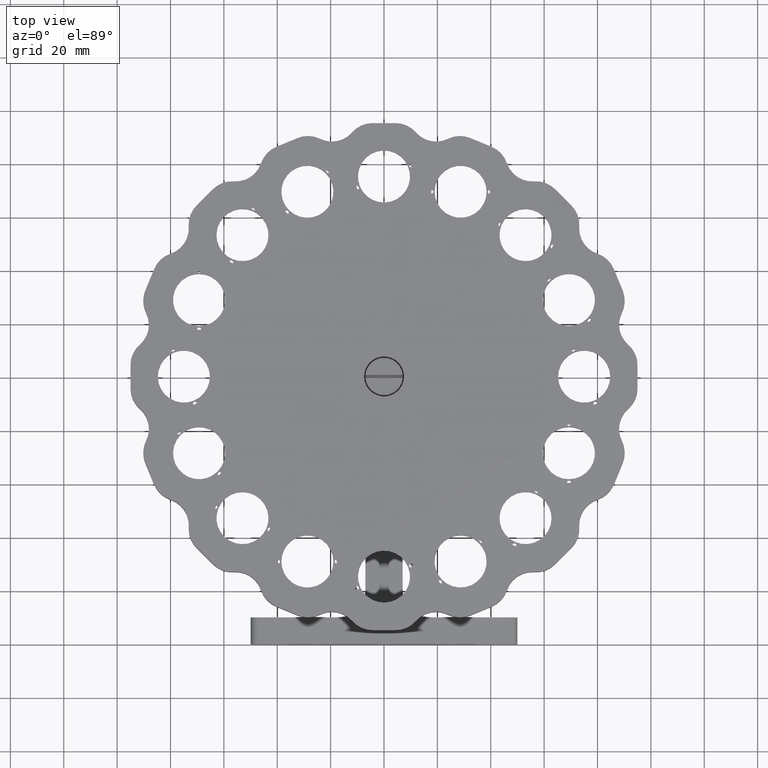
[diagram: clean part render]
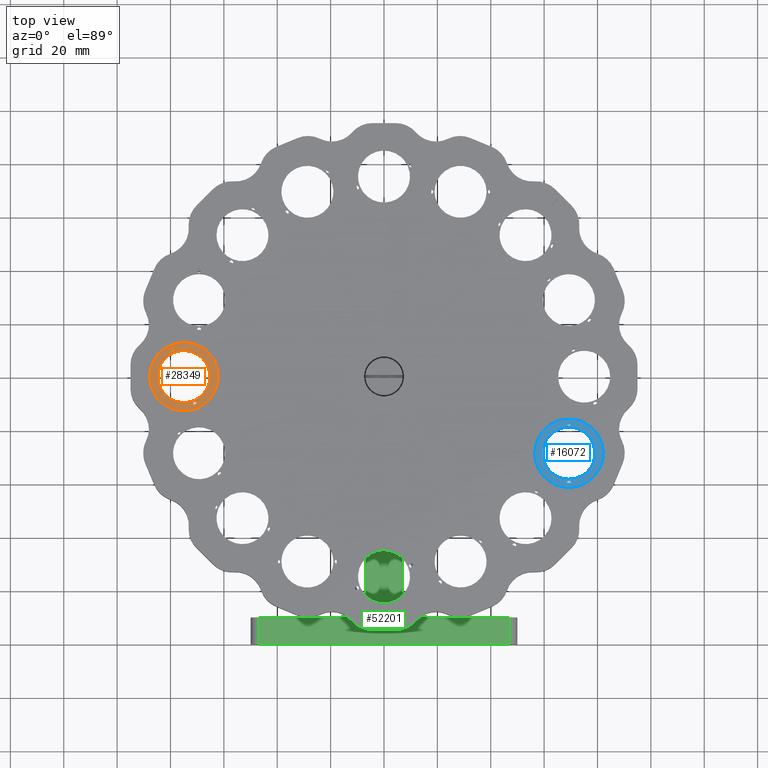
[diagram: same view with three faces highlighted in distinct colors, each labeled with its STEP entity id]
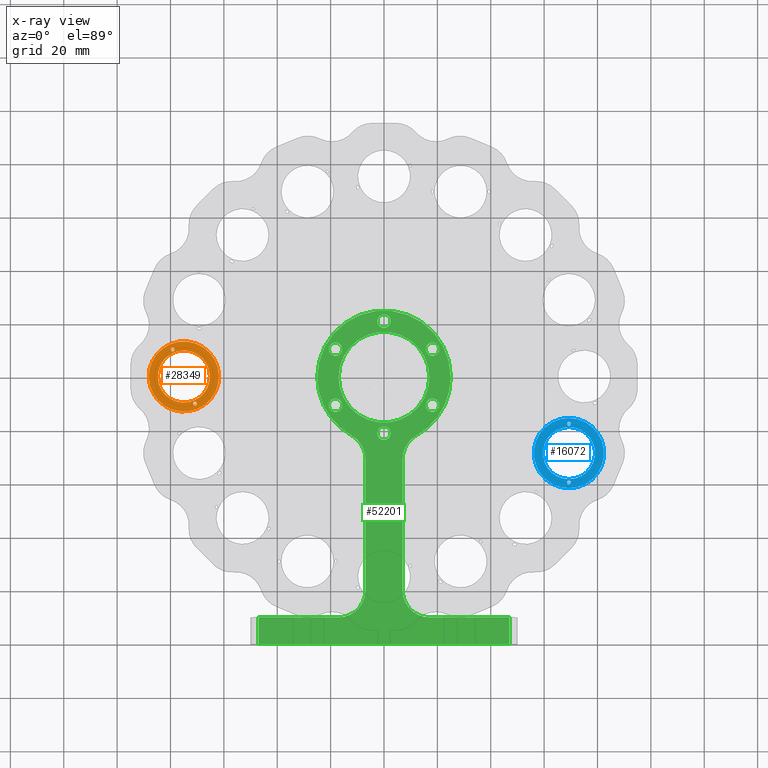
[diagram: x-ray of the same camera — body ghosted, the three highlighted faces saturated]
A machine part, top view with three faces highlighted in distinct colors.
The next image is the same camera in x-ray (body ghosted, the three faces saturated) — at least one of them is partly hidden behind the body in this view.
Their STEP definitions:

[orange] entity #28349 — the highlighted planar face has unit normal (-0, -0, 1).
#904 = AXIS2_PLACEMENT_3D ( 'NONE', #24577, #28650, #9528 ) ;
#1435 = DIRECTION ( 'NONE',  ( 0.3826834323651002700, -0.9238795325112823000, 0.0000000000000000000 ) ) ;
#1917 = CIRCLE ( 'NONE', #33898, 0.7500000000000023300 ) ;
#2052 = VERTEX_POINT ( 'NONE', #13637 ) ;
#2230 = DIRECTION ( 'NONE',  ( -1.196257624380579700E-018, -1.224547924171102900E-016, 1.000000000000000000 ) ) ;
#2279 = CARTESIAN_POINT ( 'NONE',  ( -78.73116346555774200, 9.007825441987806800, 14.00000000000000000 ) ) ;
#2485 = CARTESIAN_POINT ( 'NONE',  ( -70.79048224398208300, -10.16267485762144000, 14.00000000000000700 ) ) ;
#3361 = VERTEX_POINT ( 'NONE', #33454 ) ;
#3973 = CARTESIAN_POINT ( 'NONE',  ( -70.50346966970826700, -10.85558450700490100, 14.00000000000000700 ) ) ;
#4167 = VERTEX_POINT ( 'NONE', #50500 ) ;
#5858 = DIRECTION ( 'NONE',  ( -1.196257624381494200E-018, -1.224547924171081000E-016, 1.000000000000000000 ) ) ;
#6522 = CARTESIAN_POINT ( 'NONE',  ( -80.03228713559906300, 12.14901585252617400, 14.00000000000000000 ) ) ;
#6774 = FACE_BOUND ( 'NONE', #51026, .T. ) ;
#7079 = VERTEX_POINT ( 'NONE', #41486 ) ;
#8525 = CIRCLE ( 'NONE', #46959, 13.15000000000003200 ) ;
#9395 = DIRECTION ( 'NONE',  ( -1.196257624380579700E-018, -1.224547924171102900E-016, 1.000000000000000000 ) ) ;
#9528 = DIRECTION ( 'NONE',  ( -0.3826834323650976600, 0.9238795325112835200, 1.779203565104413400E-016 ) ) ;
#10422 = EDGE_LOOP ( 'NONE', ( #41075, #41232 ) ) ;
#10771 = DIRECTION ( 'NONE',  ( 0.3826834323651002700, -0.9238795325112823000, 0.0000000000000000000 ) ) ;
#11204 = AXIS2_PLACEMENT_3D ( 'NONE', #38553, #42590, #33972 ) ;
#12965 = DIRECTION ( 'NONE',  ( -0.3826834323650976600, 0.9238795325112835200, 1.779203565104413400E-016 ) ) ;
#13637 = CARTESIAN_POINT ( 'NONE',  ( -78.92250518174044800, 9.469765208243417800, 14.00000000000000900 ) ) ;
#14351 = DIRECTION ( 'NONE',  ( -1.196257624380579700E-018, -1.224547924171102900E-016, 1.000000000000000000 ) ) ;
#14970 = EDGE_LOOP ( 'NONE', ( #51221, #44353 ) ) ;
#15335 = ORIENTED_EDGE ( 'NONE', *, *, #41545, .T. ) ;
#16846 = CARTESIAN_POINT ( 'NONE',  ( -79.20951775601427900, 10.16267485762687900, 14.00000000000000900 ) ) ;
#17402 = CARTESIAN_POINT ( 'NONE',  ( -74.99999999999803900, 2.793410372272969800E-012, 13.99999999999999800 ) ) ;
#18512 = CARTESIAN_POINT ( 'NONE',  ( -74.99999999999803900, 2.793410372272969800E-012, 13.99999999999999800 ) ) ;
#19398 = VERTEX_POINT ( 'NONE', #3973 ) ;
#20865 = DIRECTION ( 'NONE',  ( -0.3826834323651002700, 0.9238795325112823000, 0.0000000000000000000 ) ) ;
#21112 = EDGE_CURVE ( 'NONE', #7079, #39041, #52247, .T. ) ;
#24577 = CARTESIAN_POINT ( 'NONE',  ( -74.99999999999803900, 2.793410372272969800E-012, 13.99999999999999800 ) ) ;
#26076 = DIRECTION ( 'NONE',  ( -0.3826834323650972200, 0.9238795325112835200, 1.319181350552701800E-016 ) ) ;
#26280 = EDGE_CURVE ( 'NONE', #2052, #47051, #42927, .T. ) ;
#27358 = EDGE_CURVE ( 'NONE', #51619, #3361, #31488, .T. ) ;
#28349 = ADVANCED_FACE ( 'NONE', ( #6774, #34654, #40303, #44080 ), #37729, .T. ) ;
#28650 = DIRECTION ( 'NONE',  ( -1.196257624380579700E-018, -1.224547924171102900E-016, 1.000000000000000000 ) ) ;
#29067 = CIRCLE ( 'NONE', #11204, 0.7500000000000023300 ) ;
#30357 = AXIS2_PLACEMENT_3D ( 'NONE', #17402, #5858, #49730 ) ;
#30776 = ORIENTED_EDGE ( 'NONE', *, *, #45039, .F. ) ;
#31283 = AXIS2_PLACEMENT_3D ( 'NONE', #16846, #45049, #20865 ) ;
#31488 = CIRCLE ( 'NONE', #38777, 9.750000000000023100 ) ;
#32088 = AXIS2_PLACEMENT_3D ( 'NONE', #41315, #45194, #49641 ) ;
#33454 = CARTESIAN_POINT ( 'NONE',  ( -71.26883653443835000, -9.007825441982220100, 13.99999999999999600 ) ) ;
#33898 = AXIS2_PLACEMENT_3D ( 'NONE', #42258, #9395, #1435 ) ;
#33957 = CIRCLE ( 'NONE', #904, 9.750000000000023100 ) ;
#33972 = DIRECTION ( 'NONE',  ( -0.3826834323651002700, 0.9238795325112823000, 0.0000000000000000000 ) ) ;
#34530 = ORIENTED_EDGE ( 'NONE', *, *, #39066, .F. ) ;
#34654 = FACE_BOUND ( 'NONE', #10422, .T. ) ;
#37216 = CARTESIAN_POINT ( 'NONE',  ( -74.99999999999803900, 2.793410372272969800E-012, 13.99999999999999800 ) ) ;
#37729 = PLANE ( 'NONE',  #30357 ) ;
#38553 = CARTESIAN_POINT ( 'NONE',  ( -79.20951775601427900, 10.16267485762687900, 14.00000000000000900 ) ) ;
#38777 = AXIS2_PLACEMENT_3D ( 'NONE', #37216, #45293, #12965 ) ;
#39041 = VERTEX_POINT ( 'NONE', #6522 ) ;
#39066 = EDGE_CURVE ( 'NONE', #4167, #19398, #42606, .T. ) ;
#40303 = FACE_OUTER_BOUND ( 'NONE', #44329, .T. ) ;
#40464 = AXIS2_PLACEMENT_3D ( 'NONE', #2485, #14351, #10771 ) ;
#41075 = ORIENTED_EDGE ( 'NONE', *, *, #45955, .F. ) ;
#41163 = CARTESIAN_POINT ( 'NONE',  ( -79.49653033028809500, 10.85558450701034300, 14.00000000000000900 ) ) ;
#41232 = ORIENTED_EDGE ( 'NONE', *, *, #26280, .F. ) ;
#41315 = CARTESIAN_POINT ( 'NONE',  ( -74.99999999999803900, 2.793410372272969800E-012, 13.99999999999999800 ) ) ;
#41486 = CARTESIAN_POINT ( 'NONE',  ( -69.96771286439701500, -12.14901585252058800, 13.99999999999999600 ) ) ;
#41545 = EDGE_CURVE ( 'NONE', #39041, #7079, #8525, .T. ) ;
#42258 = CARTESIAN_POINT ( 'NONE',  ( -70.79048224398208300, -10.16267485762144000, 14.00000000000000700 ) ) ;
#42590 = DIRECTION ( 'NONE',  ( -1.196257624380579700E-018, -1.224547924171102900E-016, 1.000000000000000000 ) ) ;
#42606 = CIRCLE ( 'NONE', #40464, 0.7500000000000023300 ) ;
#42927 = CIRCLE ( 'NONE', #31283, 0.7500000000000023300 ) ;
#43405 = ORIENTED_EDGE ( 'NONE', *, *, #21112, .T. ) ;
#44080 = FACE_BOUND ( 'NONE', #14970, .T. ) ;
#44329 = EDGE_LOOP ( 'NONE', ( #43405, #15335 ) ) ;
#44353 = ORIENTED_EDGE ( 'NONE', *, *, #27358, .F. ) ;
#45039 = EDGE_CURVE ( 'NONE', #19398, #4167, #1917, .T. ) ;
#45049 = DIRECTION ( 'NONE',  ( -1.196257624380579700E-018, -1.224547924171102900E-016, 1.000000000000000000 ) ) ;
#45194 = DIRECTION ( 'NONE',  ( -1.196257624380579700E-018, -1.224547924171102900E-016, 1.000000000000000000 ) ) ;
#45293 = DIRECTION ( 'NONE',  ( -1.196257624380579700E-018, -1.224547924171102900E-016, 1.000000000000000000 ) ) ;
#45955 = EDGE_CURVE ( 'NONE', #47051, #2052, #29067, .T. ) ;
#46959 = AXIS2_PLACEMENT_3D ( 'NONE', #18512, #2230, #26076 ) ;
#47051 = VERTEX_POINT ( 'NONE', #41163 ) ;
#49641 = DIRECTION ( 'NONE',  ( -0.3826834323650972200, 0.9238795325112835200, 1.319181350552701800E-016 ) ) ;
#49730 = DIRECTION ( 'NONE',  ( -0.3826834323650971100, 0.9238795325112837400, 1.126756883983928900E-016 ) ) ;
#50500 = CARTESIAN_POINT ( 'NONE',  ( -71.07749481825591400, -9.469765208237976900, 14.00000000000000700 ) ) ;
#51026 = EDGE_LOOP ( 'NONE', ( #34530, #30776 ) ) ;
#51221 = ORIENTED_EDGE ( 'NONE', *, *, #51358, .F. ) ;
#51358 = EDGE_CURVE ( 'NONE', #3361, #51619, #33957, .T. ) ;
#51619 = VERTEX_POINT ( 'NONE', #2279 ) ;
#52247 = CIRCLE ( 'NONE', #32088, 13.15000000000003200 ) ;

[blue] entity #16072 — the highlighted planar face has unit normal (-0, -0, 1).
#352 = EDGE_CURVE ( 'NONE', #7878, #39154, #10460, .T. ) ;
#813 = ORIENTED_EDGE ( 'NONE', *, *, #35823, .F. ) ;
#2386 = EDGE_LOOP ( 'NONE', ( #3524, #19901 ) ) ;
#2414 = CARTESIAN_POINT ( 'NONE',  ( 69.29096493834356400, -39.70125742738414200, 14.00000000000000200 ) ) ;
#2985 = VERTEX_POINT ( 'NONE', #50297 ) ;
#3524 = ORIENTED_EDGE ( 'NONE', *, *, #20282, .F. ) ;
#4460 = AXIS2_PLACEMENT_3D ( 'NONE', #14204, #9595, #22312 ) ;
#7065 = ORIENTED_EDGE ( 'NONE', *, *, #44692, .F. ) ;
#7386 = CARTESIAN_POINT ( 'NONE',  ( 69.29096493834339300, -38.45125742738411400, 13.99999999999999300 ) ) ;
#7878 = VERTEX_POINT ( 'NONE', #38279 ) ;
#8167 = AXIS2_PLACEMENT_3D ( 'NONE', #34384, #37772, #17973 ) ;
#8252 = DIRECTION ( 'NONE',  ( -1.196257624394535000E-018, -1.224547924171125800E-016, 1.000000000000000000 ) ) ;
#8403 = AXIS2_PLACEMENT_3D ( 'NONE', #25795, #13273, #49676 ) ;
#9161 = AXIS2_PLACEMENT_3D ( 'NONE', #2414, #43034, #50877 ) ;
#9595 = DIRECTION ( 'NONE',  ( -1.196257624394535000E-018, -1.224547924171101400E-016, 1.000000000000000000 ) ) ;
#10460 = CIRCLE ( 'NONE', #24516, 9.750000000000023100 ) ;
#10753 = VERTEX_POINT ( 'NONE', #41279 ) ;
#10769 = CIRCLE ( 'NONE', #8403, 0.7500000000000006700 ) ;
#11975 = DIRECTION ( 'NONE',  ( 6.294751282927929000E-017, -1.000000000000000000, -1.224547924171125800E-016 ) ) ;
#12389 = VERTEX_POINT ( 'NONE', #49946 ) ;
#13273 = DIRECTION ( 'NONE',  ( -1.196257624394535000E-018, -1.224547924171101400E-016, 1.000000000000000000 ) ) ;
#13787 = AXIS2_PLACEMENT_3D ( 'NONE', #41803, #50684, #25891 ) ;
#14204 = CARTESIAN_POINT ( 'NONE',  ( 69.29096493834339300, -28.70125742738411400, 13.99999999999999500 ) ) ;
#14549 = VERTEX_POINT ( 'NONE', #32104 ) ;
#15027 = CIRCLE ( 'NONE', #8167, 0.7500000000000006700 ) ;
#16072 = ADVANCED_FACE ( 'NONE', ( #39047, #44073, #47265, #51711 ), #24345, .T. ) ;
#17212 = DIRECTION ( 'NONE',  ( -1.196257624394535000E-018, -1.224547924171101400E-016, 1.000000000000000000 ) ) ;
#17528 = ORIENTED_EDGE ( 'NONE', *, *, #36199, .T. ) ;
#17973 = DIRECTION ( 'NONE',  ( 0.0000000000000000000, 1.000000000000000000, 0.0000000000000000000 ) ) ;
#19901 = ORIENTED_EDGE ( 'NONE', *, *, #31805, .F. ) ;
#19920 = CIRCLE ( 'NONE', #48905, 0.7500000000000006700 ) ;
#20282 = EDGE_CURVE ( 'NONE', #39956, #10753, #47195, .T. ) ;
#20688 = CIRCLE ( 'NONE', #13787, 13.15000000000003100 ) ;
#21305 = CARTESIAN_POINT ( 'NONE',  ( 69.29096493834339300, -28.70125742738411400, 13.99999999999999500 ) ) ;
#22312 = DIRECTION ( 'NONE',  ( 0.0000000000000000000, -1.000000000000000000, -1.319181350552702100E-016 ) ) ;
#22398 = ORIENTED_EDGE ( 'NONE', *, *, #352, .F. ) ;
#24270 = EDGE_LOOP ( 'NONE', ( #46495, #813 ) ) ;
#24345 = PLANE ( 'NONE',  #34118 ) ;
#24516 = AXIS2_PLACEMENT_3D ( 'NONE', #21305, #41778, #45836 ) ;
#25614 = EDGE_LOOP ( 'NONE', ( #22398, #7065 ) ) ;
#25795 = CARTESIAN_POINT ( 'NONE',  ( 69.29096493834356400, -39.70125742738414200, 14.00000000000000200 ) ) ;
#25891 = DIRECTION ( 'NONE',  ( 0.0000000000000000000, -1.000000000000000000, -1.319181350552702100E-016 ) ) ;
#26047 = CARTESIAN_POINT ( 'NONE',  ( 69.29096493834339300, -28.70125742738411400, 13.99999999999999500 ) ) ;
#29250 = CARTESIAN_POINT ( 'NONE',  ( 69.29096493834354900, -16.95125742738405700, 14.00000000000000700 ) ) ;
#30453 = CIRCLE ( 'NONE', #50510, 9.750000000000023100 ) ;
#31805 = EDGE_CURVE ( 'NONE', #10753, #39956, #10769, .T. ) ;
#32104 = CARTESIAN_POINT ( 'NONE',  ( 69.29096493834339300, -15.55125742738411400, 13.99999999999999600 ) ) ;
#34118 = AXIS2_PLACEMENT_3D ( 'NONE', #48735, #8252, #11975 ) ;
#34384 = CARTESIAN_POINT ( 'NONE',  ( 69.29096493834354900, -17.70125742738405700, 14.00000000000000700 ) ) ;
#35823 = EDGE_CURVE ( 'NONE', #43932, #12389, #15027, .T. ) ;
#35854 = CIRCLE ( 'NONE', #4460, 13.15000000000003100 ) ;
#36199 = EDGE_CURVE ( 'NONE', #14549, #2985, #35854, .T. ) ;
#37360 = CARTESIAN_POINT ( 'NONE',  ( 69.29096493834354900, -17.70125742738405700, 14.00000000000000700 ) ) ;
#37772 = DIRECTION ( 'NONE',  ( -1.196257624394535000E-018, -1.224547924171101400E-016, 1.000000000000000000 ) ) ;
#38158 = EDGE_CURVE ( 'NONE', #12389, #43932, #19920, .T. ) ;
#38279 = CARTESIAN_POINT ( 'NONE',  ( 69.29096493834339300, -18.95125742738411400, 13.99999999999999600 ) ) ;
#39047 = FACE_BOUND ( 'NONE', #24270, .T. ) ;
#39154 = VERTEX_POINT ( 'NONE', #7386 ) ;
#39506 = EDGE_LOOP ( 'NONE', ( #17528, #48794 ) ) ;
#39956 = VERTEX_POINT ( 'NONE', #48830 ) ;
#41279 = CARTESIAN_POINT ( 'NONE',  ( 69.29096493834356400, -38.95125742738414200, 14.00000000000000200 ) ) ;
#41778 = DIRECTION ( 'NONE',  ( -1.196257624394535000E-018, -1.224547924171101400E-016, 1.000000000000000000 ) ) ;
#41803 = CARTESIAN_POINT ( 'NONE',  ( 69.29096493834339300, -28.70125742738411400, 13.99999999999999500 ) ) ;
#43034 = DIRECTION ( 'NONE',  ( -1.196257624394535000E-018, -1.224547924171101400E-016, 1.000000000000000000 ) ) ;
#43932 = VERTEX_POINT ( 'NONE', #29250 ) ;
#44073 = FACE_BOUND ( 'NONE', #2386, .T. ) ;
#44692 = EDGE_CURVE ( 'NONE', #39154, #7878, #30453, .T. ) ;
#45435 = DIRECTION ( 'NONE',  ( 0.0000000000000000000, 1.000000000000000000, 0.0000000000000000000 ) ) ;
#45836 = DIRECTION ( 'NONE',  ( 0.0000000000000000000, -1.000000000000000000, -1.779203565104413400E-016 ) ) ;
#46203 = DIRECTION ( 'NONE',  ( -1.196257624394535000E-018, -1.224547924171101400E-016, 1.000000000000000000 ) ) ;
#46495 = ORIENTED_EDGE ( 'NONE', *, *, #38158, .F. ) ;
#47195 = CIRCLE ( 'NONE', #9161, 0.7500000000000006700 ) ;
#47265 = FACE_OUTER_BOUND ( 'NONE', #39506, .T. ) ;
#48735 = CARTESIAN_POINT ( 'NONE',  ( 69.29096493834339300, -28.70125742738411400, 13.99999999999999500 ) ) ;
#48794 = ORIENTED_EDGE ( 'NONE', *, *, #52019, .T. ) ;
#48830 = CARTESIAN_POINT ( 'NONE',  ( 69.29096493834356400, -40.45125742738414900, 14.00000000000000200 ) ) ;
#48905 = AXIS2_PLACEMENT_3D ( 'NONE', #37360, #17212, #45435 ) ;
#49676 = DIRECTION ( 'NONE',  ( 0.0000000000000000000, -1.000000000000000000, 0.0000000000000000000 ) ) ;
#49946 = CARTESIAN_POINT ( 'NONE',  ( 69.29096493834354900, -18.45125742738405700, 14.00000000000000700 ) ) ;
#50297 = CARTESIAN_POINT ( 'NONE',  ( 69.29096493834339300, -41.85125742738412000, 13.99999999999999300 ) ) ;
#50510 = AXIS2_PLACEMENT_3D ( 'NONE', #26047, #46203, #50675 ) ;
#50675 = DIRECTION ( 'NONE',  ( 0.0000000000000000000, -1.000000000000000000, -1.779203565104413400E-016 ) ) ;
#50684 = DIRECTION ( 'NONE',  ( -1.196257624394535000E-018, -1.224547924171101400E-016, 1.000000000000000000 ) ) ;
#50877 = DIRECTION ( 'NONE',  ( 0.0000000000000000000, -1.000000000000000000, 0.0000000000000000000 ) ) ;
#51711 = FACE_BOUND ( 'NONE', #25614, .T. ) ;
#52019 = EDGE_CURVE ( 'NONE', #2985, #14549, #20688, .T. ) ;

[green] entity #52201 — the highlighted planar face has unit normal (-0, 0, 1).
#279 = ORIENTED_EDGE ( 'NONE', *, *, #33143, .F. ) ;
#332 = VERTEX_POINT ( 'NONE', #41095 ) ;
#462 = AXIS2_PLACEMENT_3D ( 'NONE', #43621, #7388, #35691 ) ;
#525 = ORIENTED_EDGE ( 'NONE', *, *, #29012, .F. ) ;
#828 = DIRECTION ( 'NONE',  ( 1.000000000000000000, 0.0000000000000000000, 0.0000000000000000000 ) ) ;
#849 = CARTESIAN_POINT ( 'NONE',  ( -3.784851220313032100E-014, -89.99999999999995700, 0.0000000000000000000 ) ) ;
#940 = CARTESIAN_POINT ( 'NONE',  ( 0.0000000000000000000, -21.00000000000000000, 1.249098480898822200E-015 ) ) ;
#946 = VECTOR ( 'NONE', #23555, 1000.000000000000000 ) ;
#1107 = ORIENTED_EDGE ( 'NONE', *, *, #36077, .F. ) ;
#1358 = ORIENTED_EDGE ( 'NONE', *, *, #15023, .T. ) ;
#1461 = VERTEX_POINT ( 'NONE', #3265 ) ;
#1500 = EDGE_CURVE ( 'NONE', #24903, #28534, #25522, .T. ) ;
#1983 = VERTEX_POINT ( 'NONE', #13110 ) ;
#2000 = CIRCLE ( 'NONE', #28470, 2.499999999999988500 ) ;
#2239 = DIRECTION ( 'NONE',  ( 1.000000000000000000, 0.0000000000000000000, 0.0000000000000000000 ) ) ;
#2530 = CARTESIAN_POINT ( 'NONE',  ( 2.499999999999988500, -21.00000000000000000, 1.249098480898822200E-015 ) ) ;
#2932 = ORIENTED_EDGE ( 'NONE', *, *, #41096, .T. ) ;
#3265 = CARTESIAN_POINT ( 'NONE',  ( 15.68653347947310200, 10.50000000000021300, 1.249098480898822200E-015 ) ) ;
#3737 = CARTESIAN_POINT ( 'NONE',  ( 3.784851220313032100E-014, -89.99999999999995700, 0.0000000000000000000 ) ) ;
#3828 = AXIS2_PLACEMENT_3D ( 'NONE', #17962, #14059, #46028 ) ;
#4441 = VECTOR ( 'NONE', #32029, 1000.000000000000000 ) ;
#4839 = CARTESIAN_POINT ( 'NONE',  ( -18.18653347947323700, 10.49999999999995900, 1.249098480898822200E-015 ) ) ;
#5533 = ORIENTED_EDGE ( 'NONE', *, *, #32415, .F. ) ;
#5593 = CARTESIAN_POINT ( 'NONE',  ( -2.499999999999988500, -21.00000000000000000, 1.249098480898822200E-015 ) ) ;
#6161 = AXIS2_PLACEMENT_3D ( 'NONE', #29486, #21526, #50350 ) ;
#6219 = VECTOR ( 'NONE', #41311, 1000.000000000000000 ) ;
#6976 = VERTEX_POINT ( 'NONE', #30512 ) ;
#7122 = CARTESIAN_POINT ( 'NONE',  ( 0.0000000000000000000, 0.0000000000000000000, 0.0000000000000000000 ) ) ;
#7352 = FACE_BOUND ( 'NONE', #37035, .T. ) ;
#7388 = DIRECTION ( 'NONE',  ( -0.0000000000000000000, -0.0000000000000000000, 1.000000000000000000 ) ) ;
#7465 = CARTESIAN_POINT ( 'NONE',  ( 7.000000000000016000, -2.457817493492188900E-016, 0.0000000000000000000 ) ) ;
#8077 = CIRCLE ( 'NONE', #26665, 2.499999999999988500 ) ;
#8110 = ORIENTED_EDGE ( 'NONE', *, *, #46349, .T. ) ;
#8144 = CARTESIAN_POINT ( 'NONE',  ( 0.0000000000000000000, 0.0000000000000000000, 0.0000000000000000000 ) ) ;
#8575 = CARTESIAN_POINT ( 'NONE',  ( -46.99999999999998600, -99.99999999999997200, 0.0000000000000000000 ) ) ;
#8669 = CIRCLE ( 'NONE', #22424, 2.499999999999988500 ) ;
#8804 = AXIS2_PLACEMENT_3D ( 'NONE', #47355, #48605, #31994 ) ;
#8986 = DIRECTION ( 'NONE',  ( -0.0000000000000000000, 0.0000000000000000000, 1.000000000000000000 ) ) ;
#9073 = DIRECTION ( 'NONE',  ( 1.000000000000000000, 0.0000000000000000000, 0.0000000000000000000 ) ) ;
#9224 = DIRECTION ( 'NONE',  ( 1.000000000000000000, 0.0000000000000000000, 0.0000000000000000000 ) ) ;
#9294 = FACE_OUTER_BOUND ( 'NONE', #50860, .T. ) ;
#9532 = ORIENTED_EDGE ( 'NONE', *, *, #26846, .T. ) ;
#10046 = VERTEX_POINT ( 'NONE', #38212 ) ;
#10520 = EDGE_CURVE ( 'NONE', #18095, #30203, #29977, .T. ) ;
#10779 = CARTESIAN_POINT ( 'NONE',  ( -6.999999999999985800, -79.99999999999998600, 0.0000000000000000000 ) ) ;
#11243 = CARTESIAN_POINT ( 'NONE',  ( 0.0000000000000000000, 21.00000000000000000, 1.249098480898822200E-015 ) ) ;
#11267 = CARTESIAN_POINT ( 'NONE',  ( 47.00000000000001400, -99.99999999999997200, 0.0000000000000000000 ) ) ;
#11970 = ORIENTED_EDGE ( 'NONE', *, *, #45257, .F. ) ;
#12116 = EDGE_CURVE ( 'NONE', #26156, #42864, #2000, .T. ) ;
#12310 = VERTEX_POINT ( 'NONE', #25707 ) ;
#12341 = CIRCLE ( 'NONE', #3828, 9.999999999999991100 ) ;
#12984 = VERTEX_POINT ( 'NONE', #10779 ) ;
#13110 = CARTESIAN_POINT ( 'NONE',  ( -15.68653347947317800, -10.50000000000008700, 1.249098480898822200E-015 ) ) ;
#13467 = ORIENTED_EDGE ( 'NONE', *, *, #33272, .F. ) ;
#13629 = EDGE_CURVE ( 'NONE', #47712, #36805, #18386, .T. ) ;
#13743 = FACE_BOUND ( 'NONE', #21229, .T. ) ;
#13794 = AXIS2_PLACEMENT_3D ( 'NONE', #28121, #39811, #32206 ) ;
#13805 = CIRCLE ( 'NONE', #29955, 10.00000000000000200 ) ;
#14059 = DIRECTION ( 'NONE',  ( -0.0000000000000000000, 0.0000000000000000000, 1.000000000000000000 ) ) ;
#14311 = DIRECTION ( 'NONE',  ( 0.0000000000000000000, 1.000000000000000000, -0.0000000000000000000 ) ) ;
#14814 = DIRECTION ( 'NONE',  ( 1.000000000000000000, 0.0000000000000000000, 0.0000000000000000000 ) ) ;
#14860 = ORIENTED_EDGE ( 'NONE', *, *, #18494, .T. ) ;
#14886 = VERTEX_POINT ( 'NONE', #21002 ) ;
#14924 = AXIS2_PLACEMENT_3D ( 'NONE', #33332, #45838, #49765 ) ;
#14947 = ORIENTED_EDGE ( 'NONE', *, *, #44404, .T. ) ;
#15005 = FACE_BOUND ( 'NONE', #43818, .T. ) ;
#15023 = EDGE_CURVE ( 'NONE', #50554, #35987, #41018, .T. ) ;
#15038 = EDGE_CURVE ( 'NONE', #6976, #47885, #23928, .T. ) ;
#15229 = CIRCLE ( 'NONE', #45411, 9.999999999999991100 ) ;
#15295 = PLANE ( 'NONE',  #16185 ) ;
#15545 = ORIENTED_EDGE ( 'NONE', *, *, #49918, .F. ) ;
#15578 = EDGE_CURVE ( 'NONE', #22059, #14886, #8077, .T. ) ;
#16185 = AXIS2_PLACEMENT_3D ( 'NONE', #7122, #24297, #28362 ) ;
#16260 = VERTEX_POINT ( 'NONE', #41126 ) ;
#16835 = VERTEX_POINT ( 'NONE', #11267 ) ;
#16901 = CARTESIAN_POINT ( 'NONE',  ( 18.18653347947330800, -10.49999999999983300, 1.249098480898822200E-015 ) ) ;
#17038 = CARTESIAN_POINT ( 'NONE',  ( 7.000000000000013300, -79.99999999999998600, 0.0000000000000000000 ) ) ;
#17789 = ORIENTED_EDGE ( 'NONE', *, *, #21446, .F. ) ;
#17962 = CARTESIAN_POINT ( 'NONE',  ( 17.00000000000001400, -79.99999999999998600, 0.0000000000000000000 ) ) ;
#17986 = EDGE_LOOP ( 'NONE', ( #45279, #5533 ) ) ;
#18095 = VERTEX_POINT ( 'NONE', #36714 ) ;
#18270 = DIRECTION ( 'NONE',  ( -0.0000000000000000000, 0.0000000000000000000, 1.000000000000000000 ) ) ;
#18366 = CARTESIAN_POINT ( 'NONE',  ( -18.18653347947316600, -10.50000000000008700, 1.249098480898822200E-015 ) ) ;
#18386 = LINE ( 'NONE', #3737, #4441 ) ;
#18494 = EDGE_CURVE ( 'NONE', #43258, #12310, #27519, .T. ) ;
#18783 = DIRECTION ( 'NONE',  ( 1.000000000000000000, 0.0000000000000000000, 0.0000000000000000000 ) ) ;
#19134 = CARTESIAN_POINT ( 'NONE',  ( 15.68653347947332000, -10.49999999999983300, 1.249098480898822200E-015 ) ) ;
#19694 = EDGE_CURVE ( 'NONE', #1461, #26555, #22539, .T. ) ;
#20088 = FACE_BOUND ( 'NONE', #48484, .T. ) ;
#20141 = ORIENTED_EDGE ( 'NONE', *, *, #40538, .T. ) ;
#20821 = AXIS2_PLACEMENT_3D ( 'NONE', #16901, #37721, #9224 ) ;
#20960 = DIRECTION ( 'NONE',  ( 1.000000000000000000, 0.0000000000000000000, 0.0000000000000000000 ) ) ;
#21002 = CARTESIAN_POINT ( 'NONE',  ( 20.68653347947329700, -10.49999999999983300, 1.249098480898822200E-015 ) ) ;
#21153 = DIRECTION ( 'NONE',  ( -0.0000000000000000000, 0.0000000000000000000, 1.000000000000000000 ) ) ;
#21229 = EDGE_LOOP ( 'NONE', ( #27877, #1107 ) ) ;
#21446 = EDGE_CURVE ( 'NONE', #332, #34455, #23045, .T. ) ;
#21526 = DIRECTION ( 'NONE',  ( 0.0000000000000000000, 0.0000000000000000000, 1.000000000000000000 ) ) ;
#21860 = CIRCLE ( 'NONE', #28303, 25.00000000000002800 ) ;
#22059 = VERTEX_POINT ( 'NONE', #19134 ) ;
#22413 = CARTESIAN_POINT ( 'NONE',  ( 20.68653347947308100, 10.50000000000021300, 1.249098480898822200E-015 ) ) ;
#22424 = AXIS2_PLACEMENT_3D ( 'NONE', #940, #25168, #25328 ) ;
#22430 = CARTESIAN_POINT ( 'NONE',  ( 47.00000000000001400, -89.99999999999997200, 0.0000000000000000000 ) ) ;
#22539 = CIRCLE ( 'NONE', #14924, 2.499999999999988500 ) ;
#22599 = CARTESIAN_POINT ( 'NONE',  ( 47.00000000000001400, 0.0000000000000000000, 0.0000000000000000000 ) ) ;
#23045 = CIRCLE ( 'NONE', #33511, 2.499999999999988500 ) ;
#23074 = LINE ( 'NONE', #45564, #50975 ) ;
#23283 = AXIS2_PLACEMENT_3D ( 'NONE', #18366, #50699, #2239 ) ;
#23361 = AXIS2_PLACEMENT_3D ( 'NONE', #28817, #8986, #28628 ) ;
#23555 = DIRECTION ( 'NONE',  ( 3.511167847845976500E-017, 1.000000000000000000, 0.0000000000000000000 ) ) ;
#23600 = DIRECTION ( 'NONE',  ( -0.0000000000000000000, -0.0000000000000000000, 1.000000000000000000 ) ) ;
#23738 = ORIENTED_EDGE ( 'NONE', *, *, #41789, .F. ) ;
#23928 = CIRCLE ( 'NONE', #6161, 17.00000000000000000 ) ;
#24126 = CARTESIAN_POINT ( 'NONE',  ( -20.68653347947322600, 10.49999999999995900, 1.249098480898822200E-015 ) ) ;
#24297 = DIRECTION ( 'NONE',  ( -0.0000000000000000000, 0.0000000000000000000, 1.000000000000000000 ) ) ;
#24853 = CARTESIAN_POINT ( 'NONE',  ( 17.00000000000001400, -30.59411708155672100, 0.0000000000000000000 ) ) ;
#24903 = VERTEX_POINT ( 'NONE', #31454 ) ;
#24955 = CIRCLE ( 'NONE', #42951, 2.499999999999988500 ) ;
#24995 = ORIENTED_EDGE ( 'NONE', *, *, #10520, .F. ) ;
#25026 = DIRECTION ( 'NONE',  ( 0.0000000000000000000, -0.0000000000000000000, -1.000000000000000000 ) ) ;
#25168 = DIRECTION ( 'NONE',  ( -0.0000000000000000000, -0.0000000000000000000, 1.000000000000000000 ) ) ;
#25180 = CARTESIAN_POINT ( 'NONE',  ( 18.18653347947330800, -10.49999999999983300, 1.249098480898822200E-015 ) ) ;
#25328 = DIRECTION ( 'NONE',  ( 1.000000000000000000, 0.0000000000000000000, 0.0000000000000000000 ) ) ;
#25340 = DIRECTION ( 'NONE',  ( -0.0000000000000000000, -0.0000000000000000000, 1.000000000000000000 ) ) ;
#25522 = CIRCLE ( 'NONE', #36789, 25.00000000000002800 ) ;
#25606 = ORIENTED_EDGE ( 'NONE', *, *, #25742, .F. ) ;
#25677 = CIRCLE ( 'NONE', #23283, 2.499999999999988500 ) ;
#25707 = CARTESIAN_POINT ( 'NONE',  ( 7.000000000000015100, -30.59411708155672100, 0.0000000000000000000 ) ) ;
#25730 = FACE_BOUND ( 'NONE', #50330, .T. ) ;
#25742 = EDGE_CURVE ( 'NONE', #32136, #1983, #46746, .T. ) ;
#26145 = ORIENTED_EDGE ( 'NONE', *, *, #1500, .T. ) ;
#26156 = VERTEX_POINT ( 'NONE', #2530 ) ;
#26555 = VERTEX_POINT ( 'NONE', #22413 ) ;
#26665 = AXIS2_PLACEMENT_3D ( 'NONE', #25180, #25340, #9073 ) ;
#26846 = EDGE_CURVE ( 'NONE', #12310, #24903, #13805, .T. ) ;
#27008 = CIRCLE ( 'NONE', #50336, 25.00000000000002800 ) ;
#27470 = CARTESIAN_POINT ( 'NONE',  ( 17.00000000000001400, -89.99999999999997200, 0.0000000000000000000 ) ) ;
#27519 = LINE ( 'NONE', #7465, #946 ) ;
#27722 = ORIENTED_EDGE ( 'NONE', *, *, #52538, .F. ) ;
#27783 = EDGE_CURVE ( 'NONE', #28534, #10046, #27008, .T. ) ;
#27877 = ORIENTED_EDGE ( 'NONE', *, *, #12116, .F. ) ;
#28121 = CARTESIAN_POINT ( 'NONE',  ( 18.18653347947309100, 10.50000000000021300, 1.249098480898822200E-015 ) ) ;
#28303 = AXIS2_PLACEMENT_3D ( 'NONE', #50831, #50661, #34549 ) ;
#28362 = DIRECTION ( 'NONE',  ( 1.000000000000000000, 0.0000000000000000000, 0.0000000000000000000 ) ) ;
#28470 = AXIS2_PLACEMENT_3D ( 'NONE', #37415, #37246, #20960 ) ;
#28534 = VERTEX_POINT ( 'NONE', #44703 ) ;
#28542 = LINE ( 'NONE', #28936, #37397 ) ;
#28628 = DIRECTION ( 'NONE',  ( 1.000000000000000000, 0.0000000000000000000, 0.0000000000000000000 ) ) ;
#28817 = CARTESIAN_POINT ( 'NONE',  ( -16.99999999999998600, -30.59411708155672100, 0.0000000000000000000 ) ) ;
#28899 = DIRECTION ( 'NONE',  ( -0.0000000000000000000, -0.0000000000000000000, 1.000000000000000000 ) ) ;
#28936 = CARTESIAN_POINT ( 'NONE',  ( -46.99999999999998600, -99.99999999999997200, 0.0000000000000000000 ) ) ;
#29012 = EDGE_CURVE ( 'NONE', #26555, #1461, #36527, .T. ) ;
#29297 = CARTESIAN_POINT ( 'NONE',  ( -6.999999999999987600, -2.457817493492179600E-016, 0.0000000000000000000 ) ) ;
#29367 = DIRECTION ( 'NONE',  ( -0.0000000000000000000, -0.0000000000000000000, 1.000000000000000000 ) ) ;
#29486 = CARTESIAN_POINT ( 'NONE',  ( 0.0000000000000000000, 0.0000000000000000000, 0.0000000000000000000 ) ) ;
#29553 = FACE_BOUND ( 'NONE', #36996, .T. ) ;
#29804 = LINE ( 'NONE', #29297, #31626 ) ;
#29955 = AXIS2_PLACEMENT_3D ( 'NONE', #24853, #25026, #37771 ) ;
#29977 = CIRCLE ( 'NONE', #52081, 2.499999999999988500 ) ;
#30203 = VERTEX_POINT ( 'NONE', #43452 ) ;
#30512 = CARTESIAN_POINT ( 'NONE',  ( 17.00000000000000000, 0.0000000000000000000, 0.0000000000000000000 ) ) ;
#31212 = ORIENTED_EDGE ( 'NONE', *, *, #13629, .F. ) ;
#31454 = CARTESIAN_POINT ( 'NONE',  ( 12.14285714285716200, -21.85294077254051700, 0.0000000000000000000 ) ) ;
#31626 = VECTOR ( 'NONE', #45531, 1000.000000000000000 ) ;
#31994 = DIRECTION ( 'NONE',  ( 1.000000000000000000, 0.0000000000000000000, 0.0000000000000000000 ) ) ;
#32029 = DIRECTION ( 'NONE',  ( 1.000000000000000000, 4.205390244792259800E-016, 0.0000000000000000000 ) ) ;
#32136 = VERTEX_POINT ( 'NONE', #41921 ) ;
#32206 = DIRECTION ( 'NONE',  ( 1.000000000000000000, 0.0000000000000000000, 0.0000000000000000000 ) ) ;
#32320 = DIRECTION ( 'NONE',  ( -0.0000000000000000000, 0.0000000000000000000, 1.000000000000000000 ) ) ;
#32415 = EDGE_CURVE ( 'NONE', #47885, #6976, #36044, .T. ) ;
#33143 = EDGE_CURVE ( 'NONE', #30203, #18095, #38532, .T. ) ;
#33272 = EDGE_CURVE ( 'NONE', #41333, #16260, #45401, .T. ) ;
#33332 = CARTESIAN_POINT ( 'NONE',  ( 18.18653347947309100, 10.50000000000021300, 1.249098480898822200E-015 ) ) ;
#33407 = CIRCLE ( 'NONE', #20821, 2.499999999999988500 ) ;
#33511 = AXIS2_PLACEMENT_3D ( 'NONE', #40865, #29367, #49525 ) ;
#34455 = VERTEX_POINT ( 'NONE', #24126 ) ;
#34549 = DIRECTION ( 'NONE',  ( 1.000000000000000000, 0.0000000000000000000, 0.0000000000000000000 ) ) ;
#35359 = VECTOR ( 'NONE', #14311, 1000.000000000000000 ) ;
#35691 = DIRECTION ( 'NONE',  ( 1.000000000000000000, 0.0000000000000000000, 0.0000000000000000000 ) ) ;
#35794 = ORIENTED_EDGE ( 'NONE', *, *, #27783, .T. ) ;
#35870 = CARTESIAN_POINT ( 'NONE',  ( 1.431146867680865900E-014, 2.135878279796443700E-014, 0.0000000000000000000 ) ) ;
#35987 = VERTEX_POINT ( 'NONE', #27470 ) ;
#36044 = CIRCLE ( 'NONE', #51809, 17.00000000000000000 ) ;
#36077 = EDGE_CURVE ( 'NONE', #42864, #26156, #8669, .T. ) ;
#36527 = CIRCLE ( 'NONE', #13794, 2.499999999999988500 ) ;
#36656 = DIRECTION ( 'NONE',  ( 1.000000000000000000, 0.0000000000000000000, 0.0000000000000000000 ) ) ;
#36714 = CARTESIAN_POINT ( 'NONE',  ( 2.499999999999988500, 21.00000000000000000, 1.249098480898822200E-015 ) ) ;
#36789 = AXIS2_PLACEMENT_3D ( 'NONE', #35870, #32320, #48406 ) ;
#36805 = VERTEX_POINT ( 'NONE', #36862 ) ;
#36862 = CARTESIAN_POINT ( 'NONE',  ( -16.99999999999998600, -89.99999999999997200, 0.0000000000000000000 ) ) ;
#36996 = EDGE_LOOP ( 'NONE', ( #15545, #40997 ) ) ;
#37035 = EDGE_LOOP ( 'NONE', ( #17789, #23738 ) ) ;
#37246 = DIRECTION ( 'NONE',  ( -0.0000000000000000000, -0.0000000000000000000, 1.000000000000000000 ) ) ;
#37397 = VECTOR ( 'NONE', #49270, 1000.000000000000000 ) ;
#37415 = CARTESIAN_POINT ( 'NONE',  ( 0.0000000000000000000, -21.00000000000000000, 1.249098480898822200E-015 ) ) ;
#37721 = DIRECTION ( 'NONE',  ( -0.0000000000000000000, -0.0000000000000000000, 1.000000000000000000 ) ) ;
#37771 = DIRECTION ( 'NONE',  ( 1.000000000000000000, -1.734723475976806700E-015, 0.0000000000000000000 ) ) ;
#37795 = EDGE_CURVE ( 'NONE', #43258, #35987, #12341, .T. ) ;
#38212 = CARTESIAN_POINT ( 'NONE',  ( -25.00000000000001400, 2.442039979583282200E-014, 0.0000000000000000000 ) ) ;
#38532 = CIRCLE ( 'NONE', #8804, 2.499999999999988500 ) ;
#39376 = EDGE_CURVE ( 'NONE', #12984, #41333, #29804, .T. ) ;
#39811 = DIRECTION ( 'NONE',  ( -0.0000000000000000000, -0.0000000000000000000, 1.000000000000000000 ) ) ;
#40538 = EDGE_CURVE ( 'NONE', #10046, #16260, #21860, .T. ) ;
#40865 = CARTESIAN_POINT ( 'NONE',  ( -18.18653347947323700, 10.49999999999995900, 1.249098480898822200E-015 ) ) ;
#40997 = ORIENTED_EDGE ( 'NONE', *, *, #15578, .F. ) ;
#41018 = LINE ( 'NONE', #849, #6219 ) ;
#41095 = CARTESIAN_POINT ( 'NONE',  ( -15.68653347947324800, 10.49999999999995900, 1.249098480898822200E-015 ) ) ;
#41096 = EDGE_CURVE ( 'NONE', #43888, #16835, #23074, .T. ) ;
#41126 = CARTESIAN_POINT ( 'NONE',  ( -12.14285714285713300, -21.85294077254051700, 0.0000000000000000000 ) ) ;
#41167 = DIRECTION ( 'NONE',  ( 1.000000000000000000, 0.0000000000000000000, 0.0000000000000000000 ) ) ;
#41311 = DIRECTION ( 'NONE',  ( -1.000000000000000000, 4.205390244792259800E-016, 0.0000000000000000000 ) ) ;
#41333 = VERTEX_POINT ( 'NONE', #47155 ) ;
#41789 = EDGE_CURVE ( 'NONE', #34455, #332, #24955, .T. ) ;
#41921 = CARTESIAN_POINT ( 'NONE',  ( -20.68653347947315500, -10.50000000000008700, 1.249098480898822200E-015 ) ) ;
#42773 = CARTESIAN_POINT ( 'NONE',  ( -16.99999999999998600, -79.99999999999998600, 0.0000000000000000000 ) ) ;
#42864 = VERTEX_POINT ( 'NONE', #5593 ) ;
#42935 = ORIENTED_EDGE ( 'NONE', *, *, #37795, .F. ) ;
#42951 = AXIS2_PLACEMENT_3D ( 'NONE', #4839, #28899, #49039 ) ;
#43003 = CARTESIAN_POINT ( 'NONE',  ( -46.99999999999998600, -89.99999999999997200, 0.0000000000000000000 ) ) ;
#43258 = VERTEX_POINT ( 'NONE', #17038 ) ;
#43452 = CARTESIAN_POINT ( 'NONE',  ( -2.499999999999988500, 21.00000000000000000, 1.249098480898822200E-015 ) ) ;
#43621 = CARTESIAN_POINT ( 'NONE',  ( -18.18653347947316600, -10.50000000000008700, 1.249098480898822200E-015 ) ) ;
#43818 = EDGE_LOOP ( 'NONE', ( #27722, #25606 ) ) ;
#43888 = VERTEX_POINT ( 'NONE', #8575 ) ;
#44404 = EDGE_CURVE ( 'NONE', #47712, #43888, #28542, .T. ) ;
#44685 = FACE_BOUND ( 'NONE', #17986, .T. ) ;
#44703 = CARTESIAN_POINT ( 'NONE',  ( 25.00000000000004300, 2.135878279796443700E-014, 0.0000000000000000000 ) ) ;
#44729 = DIRECTION ( 'NONE',  ( 0.0000000000000000000, 0.0000000000000000000, 1.000000000000000000 ) ) ;
#45257 = EDGE_CURVE ( 'NONE', #36805, #12984, #15229, .T. ) ;
#45279 = ORIENTED_EDGE ( 'NONE', *, *, #15038, .F. ) ;
#45401 = CIRCLE ( 'NONE', #23361, 10.00000000000000000 ) ;
#45411 = AXIS2_PLACEMENT_3D ( 'NONE', #42773, #18270, #18783 ) ;
#45531 = DIRECTION ( 'NONE',  ( -3.511167847845976500E-017, 1.000000000000000000, 0.0000000000000000000 ) ) ;
#45564 = CARTESIAN_POINT ( 'NONE',  ( 0.0000000000000000000, -99.99999999999997200, 0.0000000000000000000 ) ) ;
#45838 = DIRECTION ( 'NONE',  ( -0.0000000000000000000, -0.0000000000000000000, 1.000000000000000000 ) ) ;
#46028 = DIRECTION ( 'NONE',  ( 1.000000000000000000, 0.0000000000000000000, 0.0000000000000000000 ) ) ;
#46080 = LINE ( 'NONE', #22599, #35359 ) ;
#46349 = EDGE_CURVE ( 'NONE', #16835, #50554, #46080, .T. ) ;
#46746 = CIRCLE ( 'NONE', #462, 2.499999999999988500 ) ;
#47155 = CARTESIAN_POINT ( 'NONE',  ( -6.999999999999987600, -30.59411708155672100, 0.0000000000000000000 ) ) ;
#47355 = CARTESIAN_POINT ( 'NONE',  ( 0.0000000000000000000, 21.00000000000000000, 1.249098480898822200E-015 ) ) ;
#47457 = ORIENTED_EDGE ( 'NONE', *, *, #19694, .F. ) ;
#47712 = VERTEX_POINT ( 'NONE', #43003 ) ;
#47885 = VERTEX_POINT ( 'NONE', #51367 ) ;
#48406 = DIRECTION ( 'NONE',  ( 1.000000000000000000, 0.0000000000000000000, 0.0000000000000000000 ) ) ;
#48484 = EDGE_LOOP ( 'NONE', ( #525, #47457 ) ) ;
#48605 = DIRECTION ( 'NONE',  ( -0.0000000000000000000, -0.0000000000000000000, 1.000000000000000000 ) ) ;
#49039 = DIRECTION ( 'NONE',  ( 1.000000000000000000, 0.0000000000000000000, 0.0000000000000000000 ) ) ;
#49270 = DIRECTION ( 'NONE',  ( -0.0000000000000000000, -1.000000000000000000, 0.0000000000000000000 ) ) ;
#49283 = CARTESIAN_POINT ( 'NONE',  ( 1.431146867680865900E-014, 2.135878279796443700E-014, 0.0000000000000000000 ) ) ;
#49525 = DIRECTION ( 'NONE',  ( 1.000000000000000000, 0.0000000000000000000, 0.0000000000000000000 ) ) ;
#49765 = DIRECTION ( 'NONE',  ( 1.000000000000000000, 0.0000000000000000000, 0.0000000000000000000 ) ) ;
#49918 = EDGE_CURVE ( 'NONE', #14886, #22059, #33407, .T. ) ;
#50069 = ORIENTED_EDGE ( 'NONE', *, *, #39376, .F. ) ;
#50330 = EDGE_LOOP ( 'NONE', ( #24995, #279 ) ) ;
#50336 = AXIS2_PLACEMENT_3D ( 'NONE', #49283, #21153, #828 ) ;
#50350 = DIRECTION ( 'NONE',  ( 1.000000000000000000, 0.0000000000000000000, 0.0000000000000000000 ) ) ;
#50554 = VERTEX_POINT ( 'NONE', #22430 ) ;
#50661 = DIRECTION ( 'NONE',  ( -0.0000000000000000000, 0.0000000000000000000, 1.000000000000000000 ) ) ;
#50699 = DIRECTION ( 'NONE',  ( -0.0000000000000000000, -0.0000000000000000000, 1.000000000000000000 ) ) ;
#50831 = CARTESIAN_POINT ( 'NONE',  ( 1.431146867680865900E-014, 2.135878279796443700E-014, 0.0000000000000000000 ) ) ;
#50860 = EDGE_LOOP ( 'NONE', ( #2932, #8110, #1358, #42935, #14860, #9532, #26145, #35794, #20141, #13467, #50069, #11970, #31212, #14947 ) ) ;
#50975 = VECTOR ( 'NONE', #41167, 1000.000000000000000 ) ;
#51367 = CARTESIAN_POINT ( 'NONE',  ( -17.00000000000000000, 2.081899558550500300E-015, 0.0000000000000000000 ) ) ;
#51809 = AXIS2_PLACEMENT_3D ( 'NONE', #8144, #44729, #36656 ) ;
#52081 = AXIS2_PLACEMENT_3D ( 'NONE', #11243, #23600, #14814 ) ;
#52201 = ADVANCED_FACE ( 'NONE', ( #44685, #20088, #29553, #13743, #15005, #7352, #25730, #9294 ), #15295, .T. ) ;
#52538 = EDGE_CURVE ( 'NONE', #1983, #32136, #25677, .T. ) ;